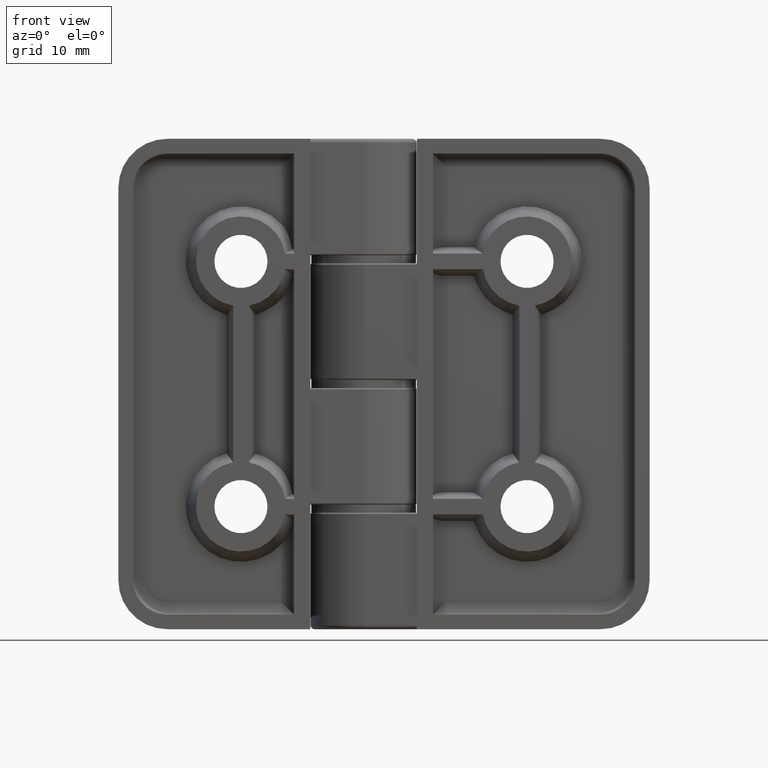
[diagram: clean part render]
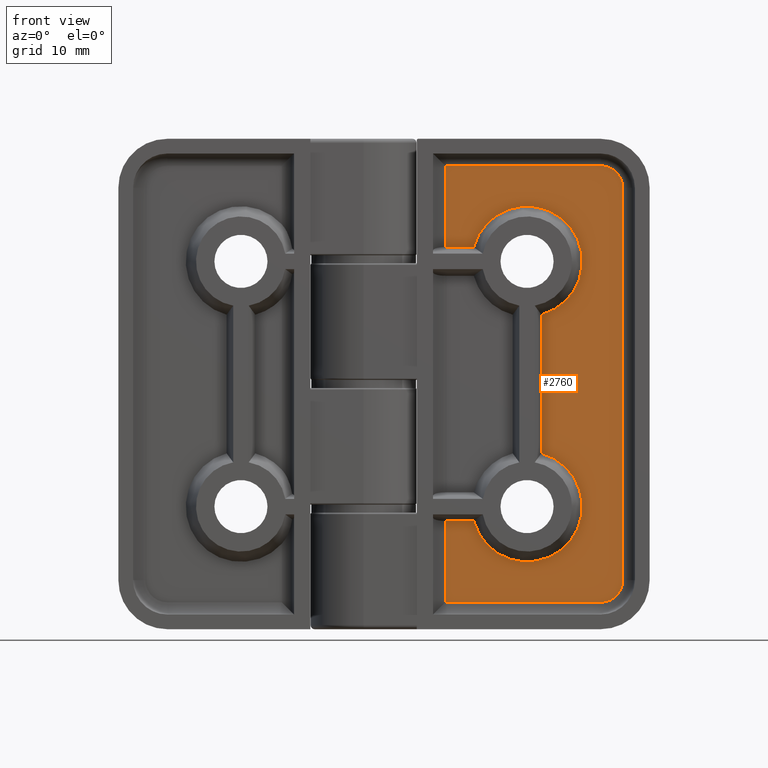
[diagram: same view with one face highlighted and labeled with its STEP entity id]
A machine part, front view. The second image highlights one B-rep face of the part: STEP entity #2760.
In plain terms, the highlighted planar face has unit normal (0, -1, 0).
Its self-contained STEP definition (entity closure, byte-faithful):
#167=PLANE('',#3063);
#282=CIRCLE('',#3013,2.7);
#286=CIRCLE('',#3019,2.7);
#296=CIRCLE('',#3047,6.75);
#302=CIRCLE('',#3060,6.75);
#490=FACE_OUTER_BOUND('',#683,.T.);
#683=EDGE_LOOP('',(#2372,#2373,#2374,#2375,#2376,#2377,#2378,#2379,#2380,
#2381,#2382,#2383));
#894=LINE('',#5146,#1072);
#895=LINE('',#5150,#1073);
#898=LINE('',#5165,#1076);
#900=LINE('',#5176,#1078);
#901=LINE('',#5180,#1079);
#903=LINE('',#5186,#1081);
#906=LINE('',#5197,#1084);
#908=LINE('',#5217,#1086);
#1072=VECTOR('',#3667,9.95);
#1073=VECTOR('',#3672,19.);
#1076=VECTOR('',#3689,48.);
#1078=VECTOR('',#3701,19.);
#1079=VECTOR('',#3706,9.95);
#1081=VECTOR('',#3712,3.4807975947974);
#1084=VECTOR('',#3717,3.4807975947973);
#1086=VECTOR('',#3723,16.9615951895947);
#1320=VERTEX_POINT('',#5143);
#1321=VERTEX_POINT('',#5145);
#1322=VERTEX_POINT('',#5149);
#1324=VERTEX_POINT('',#5155);
#1326=VERTEX_POINT('',#5161);
#1328=VERTEX_POINT('',#5167);
#1331=VERTEX_POINT('',#5175);
#1332=VERTEX_POINT('',#5179);
#1334=VERTEX_POINT('',#5185);
#1335=VERTEX_POINT('',#5193);
#1338=VERTEX_POINT('',#5209);
#1339=VERTEX_POINT('',#5213);
#1652=EDGE_CURVE('',#1320,#1321,#894,.T.);
#1654=EDGE_CURVE('',#1321,#1322,#895,.T.);
#1659=EDGE_CURVE('',#1322,#1324,#282,.T.);
#1662=EDGE_CURVE('',#1324,#1326,#898,.T.);
#1665=EDGE_CURVE('',#1326,#1328,#286,.T.);
#1667=EDGE_CURVE('',#1328,#1331,#900,.T.);
#1669=EDGE_CURVE('',#1331,#1332,#901,.T.);
#1672=EDGE_CURVE('',#1334,#1332,#903,.T.);
#1677=EDGE_CURVE('',#1320,#1335,#906,.T.);
#1683=EDGE_CURVE('',#1338,#1339,#908,.T.);
#1711=EDGE_CURVE('',#1335,#1338,#296,.T.);
#1722=EDGE_CURVE('',#1339,#1334,#302,.T.);
#2372=ORIENTED_EDGE('',*,*,#1669,.F.);
#2373=ORIENTED_EDGE('',*,*,#1667,.F.);
#2374=ORIENTED_EDGE('',*,*,#1665,.F.);
#2375=ORIENTED_EDGE('',*,*,#1662,.F.);
#2376=ORIENTED_EDGE('',*,*,#1659,.F.);
#2377=ORIENTED_EDGE('',*,*,#1654,.F.);
#2378=ORIENTED_EDGE('',*,*,#1652,.F.);
#2379=ORIENTED_EDGE('',*,*,#1677,.T.);
#2380=ORIENTED_EDGE('',*,*,#1711,.T.);
#2381=ORIENTED_EDGE('',*,*,#1683,.T.);
#2382=ORIENTED_EDGE('',*,*,#1722,.T.);
#2383=ORIENTED_EDGE('',*,*,#1672,.T.);
#2760=ADVANCED_FACE('',(#490),#167,.T.);
#3013=AXIS2_PLACEMENT_3D('',#5159,#3682,#3683);
#3019=AXIS2_PLACEMENT_3D('',#5171,#3696,#3697);
#3047=AXIS2_PLACEMENT_3D('',#5276,#3778,#3779);
#3060=AXIS2_PLACEMENT_3D('',#5364,#3808,#3809);
#3063=AXIS2_PLACEMENT_3D('',#5367,#3814,#3815);
#3667=DIRECTION('',(9.84240270057763E-18,4.37090483832564E-33,-1.));
#3672=DIRECTION('',(-1.,-4.44089209850063E-16,-1.218537466052E-16));
#3682=DIRECTION('center_axis',(-4.44089209850063E-16,1.,0.));
#3683=DIRECTION('ref_axis',(-0.707106781186547,-3.14018491736755E-16,-0.707106781186548));
#3689=DIRECTION('',(0.,0.,1.));
#3696=DIRECTION('center_axis',(-4.44089209850063E-16,1.,0.));
#3697=DIRECTION('ref_axis',(-0.707106781186547,-3.14018491736755E-16,0.707106781186548));
#3701=DIRECTION('',(1.,4.44089209850063E-16,4.33257765707378E-16));
#3706=DIRECTION('',(9.84240270057763E-18,4.37090483832564E-33,-1.));
#3712=DIRECTION('',(1.,4.44089209850063E-16,8.25896140310399E-17));
#3717=DIRECTION('',(-1.,-4.44089209850063E-16,3.54892432893666E-17));
#3723=DIRECTION('',(-1.70364191208628E-16,-7.56568990605847E-32,1.));
#3778=DIRECTION('center_axis',(-4.44089209850063E-16,1.,0.));
#3779=DIRECTION('ref_axis',(-1.,-4.44089209850063E-16,0.));
#3808=DIRECTION('center_axis',(-4.44089209850063E-16,1.,0.));
#3809=DIRECTION('ref_axis',(-1.,-4.44089209850063E-16,0.));
#3814=DIRECTION('center_axis',(4.44089209850063E-16,-1.,0.));
#3815=DIRECTION('ref_axis',(0.,0.,-1.));
#5143=CARTESIAN_POINT('',(-10.,-4.,-16.75));
#5145=CARTESIAN_POINT('',(-10.,-4.,-26.7));
#5146=CARTESIAN_POINT('',(-10.,-4.,14.1));
#5149=CARTESIAN_POINT('',(-29.,-4.00000000000001,-26.7));
#5150=CARTESIAN_POINT('',(-14.4086459408213,-4.00000000000001,-26.7));
#5155=CARTESIAN_POINT('',(-31.7,-4.00000000000001,-24.));
#5159=CARTESIAN_POINT('Origin',(-29.,-4.00000000000001,-24.));
#5161=CARTESIAN_POINT('',(-31.7,-4.00000000000001,24.));
#5165=CARTESIAN_POINT('',(-31.7,-4.00000000000001,-12.));
#5167=CARTESIAN_POINT('',(-29.,-4.00000000000001,26.7));
#5171=CARTESIAN_POINT('Origin',(-29.,-4.00000000000001,24.));
#5175=CARTESIAN_POINT('',(-10.,-4.,26.7));
#5176=CARTESIAN_POINT('',(-24.6586459408214,-4.00000000000001,26.7));
#5179=CARTESIAN_POINT('',(-10.,-4.,16.75));
#5180=CARTESIAN_POINT('',(-10.,-4.,14.1));
#5185=CARTESIAN_POINT('',(-13.4807975947974,-4.00000000000001,16.75));
#5186=CARTESIAN_POINT('',(-17.4086459408214,-4.00000000000001,16.75));
#5193=CARTESIAN_POINT('',(-13.4807975947973,-4.,-16.75));
#5197=CARTESIAN_POINT('',(-14.4086459408214,-4.00000000000001,-16.75));
#5209=CARTESIAN_POINT('',(-21.75,-4.00000000000001,-8.48079759479735));
#5213=CARTESIAN_POINT('',(-21.75,-4.00000000000001,8.48079759479735));
#5217=CARTESIAN_POINT('',(-21.75,-4.00000000000001,-4.75));
#5276=CARTESIAN_POINT('Origin',(-20.,-4.00000000000001,-15.));
#5364=CARTESIAN_POINT('Origin',(-20.,-4.00000000000001,15.));
#5367=CARTESIAN_POINT('Origin',(-20.3172918816427,-4.00000000000001,3.21708419305788E-15));